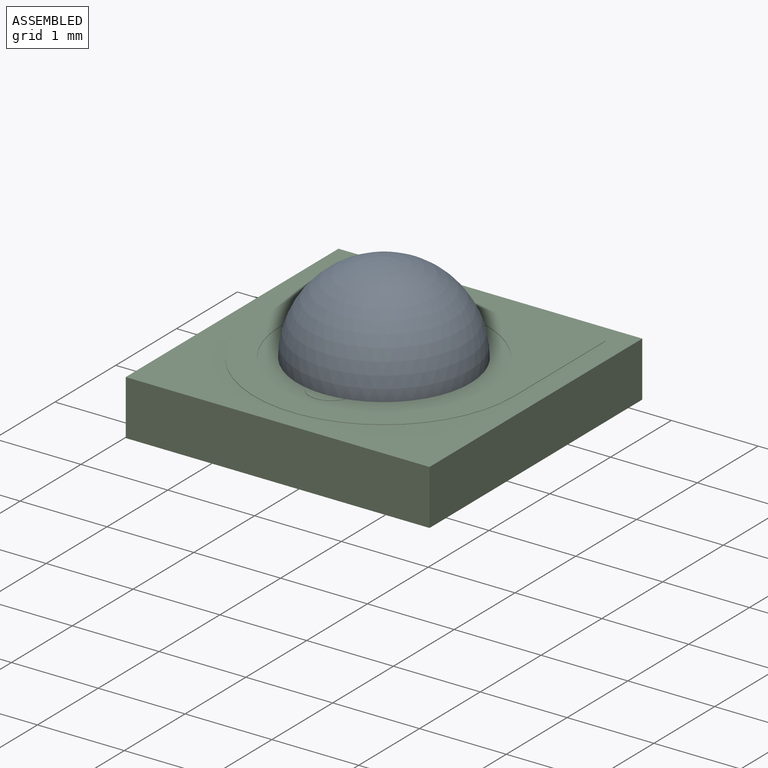
[diagram: assembled view]
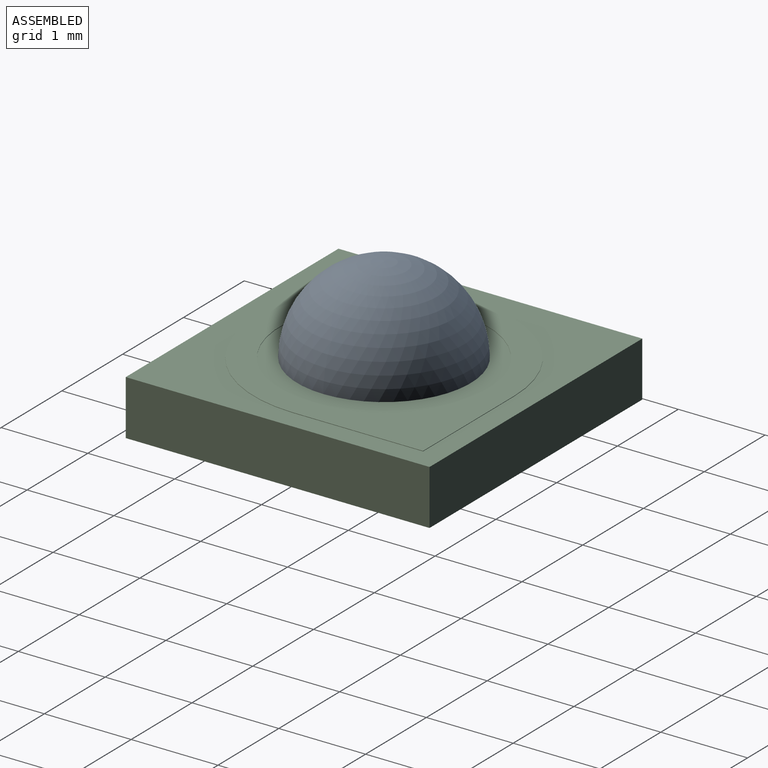
[diagram: assembled view, second angle]
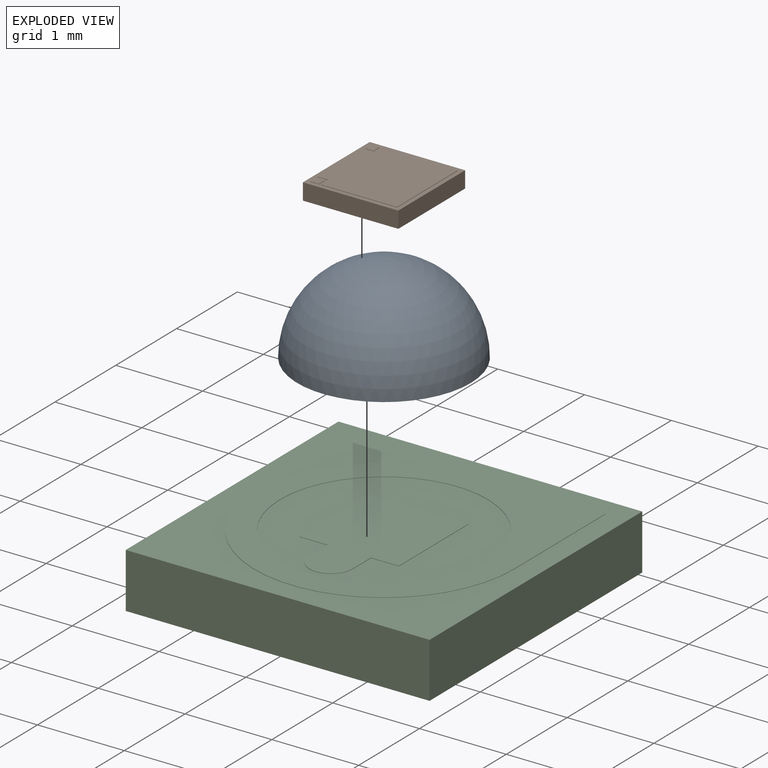
[diagram: exploded view]
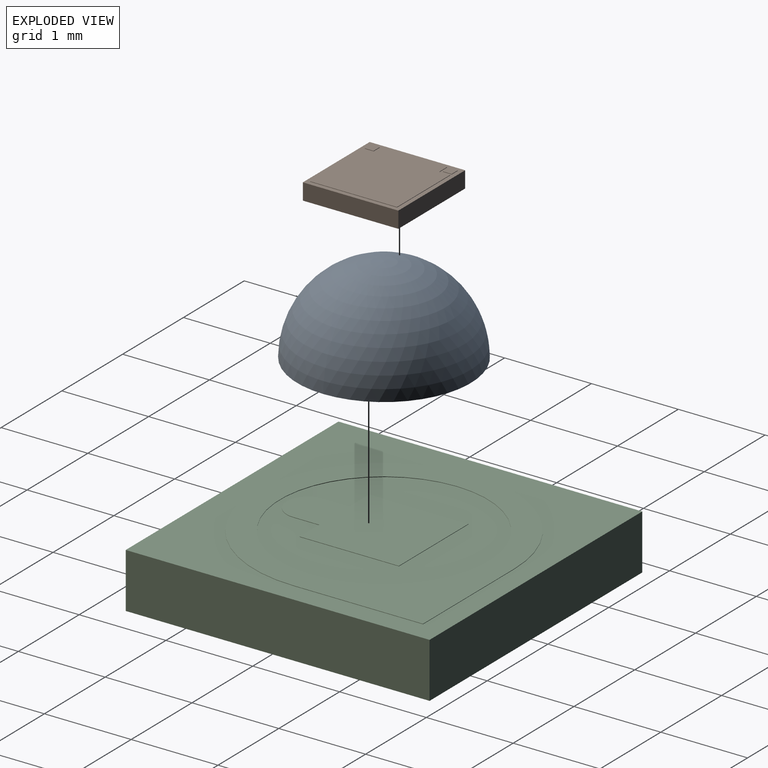
[diagram: exploded view, second angle]
ASSEMBLY  parts=3 mates=2
PART A: 2 faces, bbox 2x1x2 mm
  f0: plane 2x2mm, normal (0,-1,0), area 3.1mm2, adj f1
  f1: sphere r=1mm, area 6.3mm2, adj f0
PART B: 25 faces, bbox 1.1x1.1x0.2 mm
  f0: plane 1.1x1.1mm, normal (0,0,1), area 0.2mm2, adj f1,f2,f3,f4,f6,f7,f8,f9
  f1: plane 1.1x0.19mm, normal (0,-1,0), area 0.2mm2, adj f0,f2,f4,f5
  f2: plane 1.1x0.19mm, normal (1,0,0), area 0.2mm2, adj f0,f1,f3,f5
  f3: plane 1.1x0.19mm, normal (0,1,0), area 0.2mm2, adj f0,f2,f4,f5
  f4: plane 1.1x0.19mm, normal (-1,0,0), area 0.2mm2, adj f0,f1,f3,f5
  f5: plane 1.1x1.1mm, normal (0,0,-1), area 1.2mm2, adj f1,f2,f3,f4
  f6: plane 0.88x0.01mm, normal (0,-1,0), area 0mm2, adj f0,f7,f13,f14
  f7: plane 1x0.01mm, normal (1,0,0), area 0mm2, adj f0,f6,f8,f14
  f8: plane 0.88x0.01mm, normal (0,1,0), area 0mm2, adj f0,f7,f9,f14
  f9: plane 0.13x0.01mm, normal (-1,0,0), area 0mm2, adj f0,f8,f10,f14
  f10: plane 0.13x0.01mm, normal (0,1,0), area 0mm2, adj f0,f9,f11,f14
  f11: plane 0.75x0.01mm, normal (-1,0,0), area 0mm2, adj f0,f10,f12,f14
  f12: plane 0.13x0.01mm, normal (0,-1,0), area 0mm2, adj f0,f11,f13,f14
  f13: plane 0.13x0.01mm, normal (-1,0,0), area 0mm2, adj f0,f6,f12,f14
  f14: plane 1x1mm, normal (0,0,1), area 1mm2, adj f6,f7,f8,f9,f10,f11,f12,f13
  f15: plane 0.1x0.01mm, normal (0,1,0), area 0mm2, adj f0,f16,f18,f19
  f16: plane 0.1x0.01mm, normal (-1,0,0), area 0mm2, adj f0,f15,f17,f19
  f17: plane 0.1x0.01mm, normal (0,-1,0), area 0mm2, adj f0,f16,f18,f19
  f18: plane 0.1x0.01mm, normal (1,0,0), area 0mm2, adj f0,f15,f17,f19
  f19: plane 0.1x0.1mm, normal (0,0,1), area 0mm2, adj f15,f16,f17,f18
  f20: plane 0.1x0.01mm, normal (1,0,0), area 0mm2, adj f0,f21,f23,f24
  f21: plane 0.1x0.01mm, normal (0,1,0), area 0mm2, adj f0,f20,f22,f24
  f22: plane 0.1x0.01mm, normal (-1,0,0), area 0mm2, adj f0,f21,f23,f24
  f23: plane 0.1x0.01mm, normal (0,-1,0), area 0mm2, adj f0,f20,f22,f24
  f24: plane 0.1x0.1mm, normal (0,0,1), area 0mm2, adj f20,f21,f22,f23
PART C: 31 faces, bbox 3.5x3.5x0.6 mm
  f0: plane 3.5x3.5mm, normal (0,0,-1), area 1.4mm2, adj f2,f3,f4,f5,f21,f22,f23,f24
  f1: plane 3.5x3.5mm, normal (0,0,1), area 4.7mm2, adj f2,f3,f4,f5,f6,f7,f9
  f2: plane 3.5x0.64mm, normal (0,-1,0), area 2.2mm2, adj f0,f1,f3,f5
  f3: plane 3.5x0.64mm, normal (1,0,0), area 2.2mm2, adj f0,f1,f2,f4
  f4: plane 3.5x0.64mm, normal (0,1,0), area 2.2mm2, adj f0,f1,f3,f5
  f5: plane 3.5x0.64mm, normal (-1,0,0), area 2.2mm2, adj f0,f1,f2,f4
  f6: plane 1.5x0.01mm, normal (1,0,0), area 0mm2, adj f1,f7,f9,f10
  f7: plane 1.5x0.01mm, normal (0,1,0), area 0mm2, adj f1,f6,f9,f10
  f8: cylinder r=1.2mm len=2.4mm, axis (0,0,-1), area 0mm2, adj f10,f11
  f9: cylinder r=1.5mm len=3mm, axis (0,0,-1), area 0mm2, adj f1,f6,f7,f10
  f10: plane 3x3mm, normal (0,0,1), area 3mm2, adj f6,f7,f8,f9
  f11: plane 2.4x2.4mm, normal (0,0,1), area 3mm2, adj f8,f12,f13,f14,f15,f16,f17,f18
  f12: plane 0.32x0.01mm, normal (0,-1,0), area 0mm2, adj f11,f13,f19,f20
  f13: plane 1.14x0.01mm, normal (1,0,0), area 0mm2, adj f11,f12,f14,f20
  f14: plane 1.14x0.01mm, normal (0,1,0), area 0mm2, adj f11,f13,f15,f20
  f15: plane 1.14x0.01mm, normal (-1,0,0), area 0mm2, adj f11,f14,f16,f20
  f16: plane 0.32x0.01mm, normal (0,-1,0), area 0mm2, adj f11,f15,f17,f20
  f17: plane 0.3x0.01mm, normal (-1,0,0), area 0mm2, adj f11,f16,f18,f20
  f18: cylinder r=0.25mm len=0.5mm, axis (0,0,-1), area 0mm2, adj f11,f17,f19,f20
  f19: plane 0.3x0.01mm, normal (1,0,0), area 0mm2, adj f11,f12,f18,f20
  f20: plane 1.69x1.14mm, normal (0,0,1), area 1.6mm2, adj f12,f13,f14,f15,f16,f17,f18,f19
  f21: plane 3.35x0.01mm, normal (0,-1,0), area 0mm2, adj f0,f22,f24,f25
  f22: plane 2.41x0.01mm, normal (-1,0,0), area 0mm2, adj f0,f21,f23,f25
  f23: plane 3.35x0.01mm, normal (0,1,0), area 0mm2, adj f0,f22,f24,f25
  f24: plane 2.41x0.01mm, normal (1,0,0), area 0mm2, adj f0,f21,f23,f25
  f25: plane 3.35x2.41mm, normal (0,0,-1), area 8.1mm2, adj f21,f22,f23,f24
  f26: plane 3.35x0.01mm, normal (0,1,0), area 0mm2, adj f0,f27,f29,f30
  f27: plane 0.84x0.01mm, normal (1,0,0), area 0mm2, adj f0,f26,f28,f30
  f28: plane 3.35x0.01mm, normal (0,-1,0), area 0mm2, adj f0,f27,f29,f30
  f29: plane 0.84x0.01mm, normal (-1,0,0), area 0mm2, adj f0,f26,f28,f30
  f30: plane 3.35x0.84mm, normal (0,0,-1), area 2.8mm2, adj f26,f27,f28,f29
PLACE A rot(axis=(1,0,0),90deg) t=(-0.92,1.16,2.46)mm
PLACE B t=(-0.92,1.16,2.45)mm
PLACE C t=(-0.92,1.16,1.82)mm
MATE parallel C.f8 <-> B.f5  axis (0,0,1) through (-0.92,1.16,2.45)mm
MATE parallel A.f0 <-> C.f8  axis (0,0,-1) through (-0.92,1.16,2.46)mm
